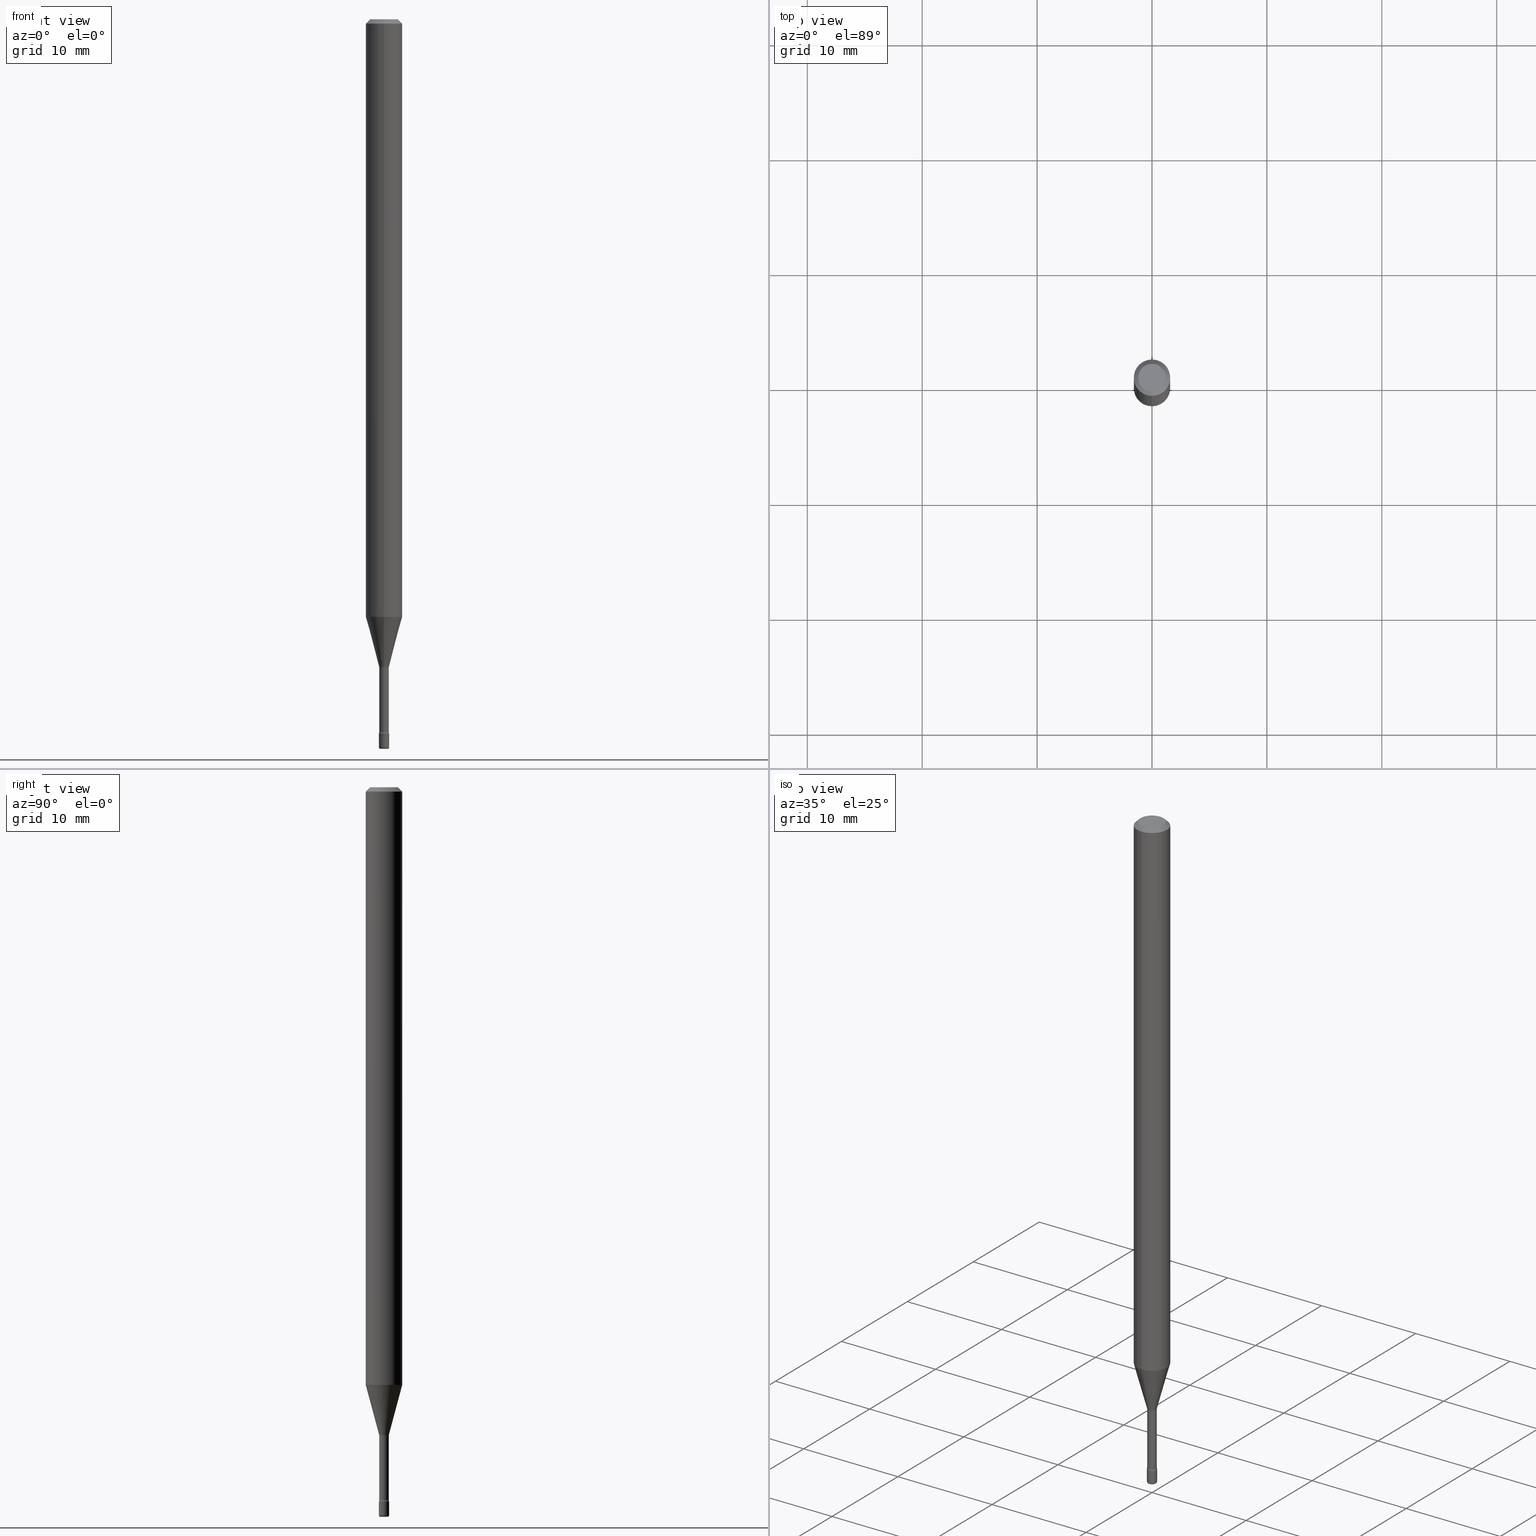
[diagram: canonical four-view strip — front | top / right | iso, engineering-drawing reading convention]
A machine part, canonical four-view strip (front | top / right | iso — engineering-drawing reading convention). The complete STEP part file that produces these views, byte-faithful:
ISO-10303-21;
HEADER;
FILE_DESCRIPTION (( 'STEP AP203' ),
    '1' );
FILE_NAME ('08795.STEP',
    '2024-03-06T20:02:45',
    ( '' ),
    ( '' ),
    'SwSTEP 2.0',
    'SolidWorks 2023',
    '' );
FILE_SCHEMA (( 'CONFIG_CONTROL_DESIGN' ));
ENDSEC;

DATA;
#1 = EDGE_CURVE ( 'NONE', #440, #310, #3, .T. ) ;
#2 = LOCAL_TIME ( 15, 2, 45.00000000000000000, #309 ) ;
#3 = CIRCLE ( 'NONE', #296, 0.01696111260566397771 ) ;
#4 = CARTESIAN_POINT ( 'NONE',  ( -0.01750000000000000167, -8.503978279858106111E-15, -2.447500000000000231 ) ) ;
#5 = VECTOR ( 'NONE', #48, 39.37007874015748143 ) ;
#6 = CARTESIAN_POINT ( 'NONE',  ( -0.01250000000000000069, -8.622428098443636122E-15, -2.495000000000000107 ) ) ;
#7 = EDGE_CURVE ( 'NONE', #92, #156, #213, .T. ) ;
#8 = DIRECTION ( 'NONE',  ( 6.982962677686265922E-15, 1.000000000000000000, -3.491518086038982995E-15 ) ) ;
#9 = EDGE_LOOP ( 'NONE', ( #274, #104, #95, #185 ) ) ;
#10 = CC_DESIGN_PERSON_AND_ORGANIZATION_ASSIGNMENT ( #275, #149, ( #115 ) ) ;
#11 = EDGE_LOOP ( 'NONE', ( #301, #538, #297, #148 ) ) ;
#12 = VECTOR ( 'NONE', #519, 39.37007874015748143 ) ;
#13 = CC_DESIGN_APPROVAL ( #111, ( #126 ) ) ;
#14 = ORIENTED_EDGE ( 'NONE', *, *, #288, .T. ) ;
#15 = DATE_AND_TIME ( #141, #430 ) ;
#16 = VERTEX_POINT ( 'NONE', #205 ) ;
#17 = CC_DESIGN_DATE_AND_TIME_ASSIGNMENT ( #15, #540, ( #122 ) ) ;
#18 = VERTEX_POINT ( 'NONE', #208 ) ;
#19 = CARTESIAN_POINT ( 'NONE',  ( 5.985284903138122000E-29, -8.545400576818598390E-15, -2.447500000000000231 ) ) ;
#20 = CARTESIAN_POINT ( 'NONE',  ( 3.668164718633155352E-31, -5.237277129058484255E-17, -0.01500000000000002720 ) ) ;
#21 = ORIENTED_EDGE ( 'NONE', *, *, #505, .F. ) ;
#22 = TOROIDAL_SURFACE ( 'NONE', #273, 0.03145000000000001267, 0.01499999999999995608 ) ;
#23 = AXIS2_PLACEMENT_3D ( 'NONE', #19, #483, #352 ) ;
#24 = DIRECTION ( 'NONE',  ( -2.445443145755432371E-29, 3.491518086038982995E-15, 1.000000000000000000 ) ) ;
#25 = EDGE_CURVE ( 'NONE', #252, #533, #280, .T. ) ;
#26 = ORIENTED_EDGE ( 'NONE', *, *, #25, .F. ) ;
#27 = DIRECTION ( 'NONE',  ( -2.445443145755432371E-29, 3.491518086038982995E-15, 1.000000000000000000 ) ) ;
#28 = CARTESIAN_POINT ( 'NONE',  ( 3.316907271900976589E-16, 0.04750000000000000749, 5.964586950610275085E-17 ) ) ;
#29 = EDGE_LOOP ( 'NONE', ( #351, #287 ) ) ;
#30 = DIRECTION ( 'NONE',  ( 4.937700262164546464E-15, 0.7071067811865449082, -0.7071067811865501263 ) ) ;
#31 = ORIENTED_EDGE ( 'NONE', *, *, #326, .F. ) ;
#32 = EDGE_CURVE ( 'NONE', #440, #252, #329, .T. ) ;
#33 = ADVANCED_FACE ( 'NONE', ( #555 ), #121, .T. ) ;
#34 = CIRCLE ( 'NONE', #138, 0.01750000000000000167 ) ;
#35 = DIRECTION ( 'NONE',  ( -2.445443145755432371E-29, 3.491518086038982995E-15, 1.000000000000000000 ) ) ;
#36 = CIRCLE ( 'NONE', #336, 0.06250000000000000000 ) ;
#37 = DIRECTION ( 'NONE',  ( -1.000000000000000000, 6.982962677686265922E-15, -4.883557194083112340E-29 ) ) ;
#38 = CARTESIAN_POINT ( 'NONE',  ( 6.622853108552095614E-46, -9.459386047552514067E-32, -2.708744170533719045E-17 ) ) ;
#39 = CC_DESIGN_PERSON_AND_ORGANIZATION_ASSIGNMENT ( #261, #221, ( #122 ) ) ;
#40 = ORIENTED_EDGE ( 'NONE', *, *, #288, .F. ) ;
#41 = DIRECTION ( 'NONE',  ( -6.982962677686266711E-15, -1.000000000000000000, 0.000000000000000000 ) ) ;
#42 = CARTESIAN_POINT ( 'NONE',  ( -1.222018468594496105E-16, -0.01750000000000852263, -2.447500000000000231 ) ) ;
#43 = AXIS2_PLACEMENT_3D ( 'NONE', #358, #37, #502 ) ;
#44 = LINE ( 'NONE', #259, #12 ) ;
#45 = AXIS2_PLACEMENT_3D ( 'NONE', #365, #412, #463 ) ;
#46 = CC_DESIGN_PERSON_AND_ORGANIZATION_ASSIGNMENT ( #100, #530, ( #271 ) ) ;
#47 = ADVANCED_FACE ( 'NONE', ( #323 ), #166, .T. ) ;
#48 = DIRECTION ( 'NONE',  ( -2.445443145755432091E-29, 3.491518086038982995E-15, 1.000000000000000000 ) ) ;
#49 = CARTESIAN_POINT ( 'NONE',  ( 2.234656903966058327E-16, 0.03144999999999224805, -2.221974787463810941 ) ) ;
#50 =( NAMED_UNIT ( * ) PLANE_ANGLE_UNIT ( ) SI_UNIT ( $, .RADIAN. ) );
#51 = ADVANCED_FACE ( 'NONE', ( #411 ), #22, .F. ) ;
#52 = DIRECTION ( 'NONE',  ( -2.445468806185136597E-29, 3.491481338843145583E-15, 1.000000000000000000 ) ) ;
#53 = APPROVAL_PERSON_ORGANIZATION ( #311, #111, #56 ) ;
#54 = TOROIDAL_SURFACE ( 'NONE', #401, 0.03145000000000001267, 0.01499999999999995608 ) ;
#55 = EDGE_LOOP ( 'NONE', ( #179, #424, #248, #59 ) ) ;
#56 = APPROVAL_ROLE ( '' ) ;
#57 = ORIENTED_EDGE ( 'NONE', *, *, #417, .T. ) ;
#58 = CALENDAR_DATE ( 2024, 6, 3 ) ;
#59 = ORIENTED_EDGE ( 'NONE', *, *, #385, .F. ) ;
#60 = APPROVAL_DATE_TIME ( #306, #379 ) ;
#61 = ORIENTED_EDGE ( 'NONE', *, *, #107, .F. ) ;
#62 = EDGE_LOOP ( 'NONE', ( #509, #266, #442, #269 ) ) ;
#63 = DIRECTION ( 'NONE',  ( -2.445443145755432371E-29, 3.491518086038982995E-15, 1.000000000000000000 ) ) ;
#64 = DIMENSIONAL_EXPONENTS ( 1.000000000000000000, 0.000000000000000000, 0.000000000000000000, 0.000000000000000000, 0.000000000000000000, 0.000000000000000000, 0.000000000000000000 ) ;
#65 = EDGE_CURVE ( 'NONE', #135, #144, #466, .T. ) ;
#66 = DIRECTION ( 'NONE',  ( -6.982962677686265133E-15, -1.000000000000000000, 0.000000000000000000 ) ) ;
#67 = CARTESIAN_POINT ( 'NONE',  ( 0.01250000000000000069, -8.798532973884726663E-15, -2.495000000000000107 ) ) ;
#68 = VECTOR ( 'NONE', #320, 39.37007874015748143 ) ;
#69 = AXIS2_PLACEMENT_3D ( 'NONE', #415, #162, #117 ) ;
#70 = PLANE ( 'NONE',  #482 ) ;
#71 = DIRECTION ( 'NONE',  ( 1.000000000000000000, -6.982962677686265922E-15, 4.876176775795936353E-29 ) ) ;
#72 = ORIENTED_EDGE ( 'NONE', *, *, #222, .T. ) ;
#73 = DIRECTION ( 'NONE',  ( -6.982962677686265133E-15, -1.000000000000000000, 3.491518086038982995E-15 ) ) ;
#74 = DIRECTION ( 'NONE',  ( 1.000000000000000000, -6.982962677686248567E-15, 0.000000000000000000 ) ) ;
#75 = CARTESIAN_POINT ( 'NONE',  ( -1.184388162973313820E-16, -0.01696111260567172499, -2.218092501787273019 ) ) ;
#76 = EDGE_CURVE ( 'NONE', #228, #487, #151, .T. ) ;
#77 = AXIS2_PLACEMENT_3D ( 'NONE', #522, #476, #293 ) ;
#78 = DIRECTION ( 'NONE',  ( -6.982962677686265922E-15, -1.000000000000000000, 3.491518086038982206E-15 ) ) ;
#79 = EDGE_LOOP ( 'NONE', ( #462, #344, #72, #40 ) ) ;
#80 = CARTESIAN_POINT ( 'NONE',  ( -4.287811248607203282E-16, -0.06250000000000005551, -0.01499999999999981036 ) ) ;
#81 = EDGE_LOOP ( 'NONE', ( #183, #386, #234, #391 ) ) ;
#82 = EDGE_LOOP ( 'NONE', ( #127, #464, #408, #524 ) ) ;
#83 = CARTESIAN_POINT ( 'NONE',  ( 4.440892098501126102E-16, 0.06249999999999283906, -2.048139060311453985 ) ) ;
#84 = EDGE_CURVE ( 'NONE', #484, #152, #239, .T. ) ;
#85 = ORIENTED_EDGE ( 'NONE', *, *, #446, .F. ) ;
#86 = AXIS2_PLACEMENT_3D ( 'NONE', #194, #318, #158 ) ;
#87 = EDGE_LOOP ( 'NONE', ( #552, #14 ) ) ;
#88 = CARTESIAN_POINT ( 'NONE',  ( -1.148697360479392982E-16, -0.01645000000000003057, 5.355088714065874152E-16 ) ) ;
#89 = EDGE_CURVE ( 'NONE', #290, #16, #454, .T. ) ;
#90 = LENGTH_MEASURE_WITH_UNIT ( LENGTH_MEASURE( 0.02539999999999999897 ), #333 );
#91 = DIRECTION ( 'NONE',  ( 6.982962677686265922E-15, 1.000000000000000000, -3.483106191921935554E-15 ) ) ;
#92 = VERTEX_POINT ( 'NONE', #523 ) ;
#93 = SECURITY_CLASSIFICATION_LEVEL ( 'unclassified' ) ;
#94 = CIRCLE ( 'NONE', #403, 0.04750000000000000749 ) ;
#95 = ORIENTED_EDGE ( 'NONE', *, *, #513, .T. ) ;
#96 = COORDINATED_UNIVERSAL_TIME_OFFSET ( 5, 0, .BEHIND. ) ;
#97 = ADVANCED_FACE ( 'NONE', ( #420 ), #335, .T. ) ;
#98 = CARTESIAN_POINT ( 'NONE',  ( 4.440892098500625669E-16, 0.06250000000000000000, 2.598535185138096507E-16 ) ) ;
#99 = VERTEX_POINT ( 'NONE', #217 ) ;
#100 = PERSON_AND_ORGANIZATION ( #171, #525 ) ;
#101 = ORIENTED_EDGE ( 'NONE', *, *, #65, .F. ) ;
#102 = CALENDAR_DATE ( 2024, 6, 3 ) ;
#103 = CIRCLE ( 'NONE', #413, 0.01644999999999999934 ) ;
#104 = ORIENTED_EDGE ( 'NONE', *, *, #374, .T. ) ;
#105 = DATE_AND_TIME ( #133, #362 ) ;
#106 = EDGE_LOOP ( 'NONE', ( #348, #285, #567, #140 ) ) ;
#107 = EDGE_CURVE ( 'NONE', #310, #152, #114, .T. ) ;
#108 = FACE_OUTER_BOUND ( 'NONE', #9, .T. ) ;
#109 = DIRECTION ( 'NONE',  ( 1.000000000000000000, -6.982962677686216223E-15, 0.000000000000000000 ) ) ;
#110 = CARTESIAN_POINT ( 'NONE',  ( 5.985284903138122000E-29, -8.545400576818598390E-15, -2.447500000000000231 ) ) ;
#111 = APPROVAL ( #441, 'UNSPECIFIED' ) ;
#112 = FACE_OUTER_BOUND ( 'NONE', #79, .T. ) ;
#113 = CARTESIAN_POINT ( 'NONE',  ( 5.008607626592616382E-29, -7.151114571800326842E-15, -2.048139060311453541 ) ) ;
#114 = CIRCLE ( 'NONE', #556, 0.01500000000000002720 ) ;
#115 = PRODUCT_DEFINITION_FORMATION_WITH_SPECIFIED_SOURCE ( 'ANY', '', #271, .NOT_KNOWN. ) ;
#116 = AXIS2_PLACEMENT_3D ( 'NONE', #557, #279, #284 ) ;
#117 = DIRECTION ( 'NONE',  ( 1.000000000000000000, -6.982962677686248567E-15, 0.000000000000000000 ) ) ;
#118 = ORIENTED_EDGE ( 'NONE', *, *, #241, .T. ) ;
#119 = EDGE_LOOP ( 'NONE', ( #305, #542, #26, #177 ) ) ;
#120 = CARTESIAN_POINT ( 'NONE',  ( 5.433770030872598640E-29, -7.757983505809861225E-15, -2.221974787463810941 ) ) ;
#121 = CYLINDRICAL_SURFACE ( 'NONE', #86, 0.01645000000000003057 ) ;
#122 = SECURITY_CLASSIFICATION ( '', '', #93 ) ;
#123 = VECTOR ( 'NONE', #146, 39.37007874015748143 ) ;
#124 = EDGE_CURVE ( 'NONE', #283, #228, #393, .T. ) ;
#125 = DIRECTION ( 'NONE',  ( -2.445443145755432371E-29, 3.491518086038982995E-15, 1.000000000000000000 ) ) ;
#126 = PRODUCT_DEFINITION ( 'UNKNOWN', '', #115, #571 ) ;
#127 = ORIENTED_EDGE ( 'NONE', *, *, #25, .T. ) ;
#128 = VECTOR ( 'NONE', #500, 39.37007874015748143 ) ;
#129 = AXIS2_PLACEMENT_3D ( 'NONE', #195, #357, #157 ) ;
#130 = CARTESIAN_POINT ( 'NONE',  ( 6.113672015462842613E-29, -8.728703347107864943E-15, -2.500000000000000000 ) ) ;
#131 = APPLICATION_PROTOCOL_DEFINITION ( 'international standard', 'config_control_design', 1994, #147 ) ;
#132 = DIRECTION ( 'NONE',  ( 7.105427357601001859E-15, 1.000000000000000000, -3.491481338843145583E-15 ) ) ;
#133 = CALENDAR_DATE ( 2024, 6, 3 ) ;
#134 = DIRECTION ( 'NONE',  ( -2.445468806185136597E-29, 3.491481338843145583E-15, 1.000000000000000000 ) ) ;
#135 = VERTEX_POINT ( 'NONE', #426 ) ;
#136 = APPROVAL_ROLE ( '' ) ;
#137 = DIRECTION ( 'NONE',  ( -2.445443145755432371E-29, 3.491518086038982995E-15, 1.000000000000000000 ) ) ;
#138 = AXIS2_PLACEMENT_3D ( 'NONE', #569, #52, #371 ) ;
#139 = CARTESIAN_POINT ( 'NONE',  ( 0.01750000000000000167, -1.222018468595096625E-16, 8.533309357642889039E-31 ) ) ;
#140 = ORIENTED_EDGE ( 'NONE', *, *, #7, .F. ) ;
#141 = CALENDAR_DATE ( 2024, 6, 3 ) ;
#142 = ADVANCED_FACE ( 'NONE', ( #381 ), #515, .T. ) ;
#143 = CARTESIAN_POINT ( 'NONE',  ( 1.205159535236902748E-16, 0.01696111260565623391, -2.218092501787273019 ) ) ;
#144 = VERTEX_POINT ( 'NONE', #4 ) ;
#145 = APPLICATION_PROTOCOL_DEFINITION ( 'international standard', 'config_control_design', 1994, #437 ) ;
#146 = DIRECTION ( 'NONE',  ( -2.445468806185136877E-29, 3.491481338843145188E-15, 1.000000000000000000 ) ) ;
#147 = APPLICATION_CONTEXT ( 'configuration controlled 3d designs of mechanical parts and assemblies' ) ;
#148 = ORIENTED_EDGE ( 'NONE', *, *, #207, .F. ) ;
#149 = PERSON_AND_ORGANIZATION_ROLE ( 'design_supplier' ) ;
#150 = CARTESIAN_POINT ( 'NONE',  ( 5.433713014044760359E-29, -7.758065157152522495E-15, -2.221974787463810941 ) ) ;
#151 = CIRCLE ( 'NONE', #547, 0.005000000000000042605 ) ;
#152 = VERTEX_POINT ( 'NONE', #570 ) ;
#153 = DIRECTION ( 'NONE',  ( -2.445443145755432371E-29, 3.491518086038982995E-15, 1.000000000000000000 ) ) ;
#154 = ORIENTED_EDGE ( 'NONE', *, *, #207, .T. ) ;
#155 = CARTESIAN_POINT ( 'NONE',  ( 5.971739410640861037E-29, -8.526240404956683849E-15, -2.441986607215153704 ) ) ;
#156 = VERTEX_POINT ( 'NONE', #42 ) ;
#157 = DIRECTION ( 'NONE',  ( 1.000000000000000000, -6.982962677686265922E-15, 4.876176775795936353E-29 ) ) ;
#158 = DIRECTION ( 'NONE',  ( -6.982962677686266711E-15, -1.000000000000000000, 3.491518086038983784E-15 ) ) ;
#159 = AXIS2_PLACEMENT_3D ( 'NONE', #113, #251, #561 ) ;
#160 = CARTESIAN_POINT ( 'NONE',  ( 1.206146293953368650E-16, 0.01644999999999153389, -2.441986607215153704 ) ) ;
#161 = DIRECTION ( 'NONE',  ( -6.982962677686266711E-15, -1.000000000000000000, 3.491481338843145583E-15 ) ) ;
#162 = DIRECTION ( 'NONE',  ( -2.445468806185136597E-29, 3.491481338843145583E-15, 1.000000000000000000 ) ) ;
#163 = ORIENTED_EDGE ( 'NONE', *, *, #390, .F. ) ;
#164 = MECHANICAL_CONTEXT ( 'NONE', #147, 'mechanical' ) ;
#165 = DIRECTION ( 'NONE',  ( -2.445468806185136597E-29, 3.491481338843145583E-15, 1.000000000000000000 ) ) ;
#166 = CONICAL_SURFACE ( 'NONE', #536, 0.06250000000000000000, 0.7853981633974480570 ) ;
#167 = CIRCLE ( 'NONE', #421, 0.04750000000000000749 ) ;
#168 = DIRECTION ( 'NONE',  ( -4.851104656540962697E-15, -0.7071067811865497932, -0.7071067811865452413 ) ) ;
#169 =( NAMED_UNIT ( * ) SI_UNIT ( $, .STERADIAN. ) SOLID_ANGLE_UNIT ( ) );
#170 = CARTESIAN_POINT ( 'NONE',  ( 2.823025816869015904E-16, 0.01696111260565623738, -2.218092501787273019 ) ) ;
#171 = PERSON ( 'UNSPECIFIED', 'UNSPECIFIED', 'UNSPECIFIED', ('UNSPECIFIED'), ('UNSPECIFIED'), ('UNSPECIFIED') ) ;
#172 = ADVANCED_FACE ( 'NONE', ( #529 ), #353, .T. ) ;
#173 = DIRECTION ( 'NONE',  ( -2.445443145755432371E-29, 3.491518086038982995E-15, 1.000000000000000000 ) ) ;
#174 = AXIS2_PLACEMENT_3D ( 'NONE', #20, #153, #549 ) ;
#175 = AXIS2_PLACEMENT_3D ( 'NONE', #465, #286, #504 ) ;
#176 = DIRECTION ( 'NONE',  ( -2.445443145755432371E-29, 3.491518086038982995E-15, 1.000000000000000000 ) ) ;
#177 = ORIENTED_EDGE ( 'NONE', *, *, #32, .F. ) ;
#178 = DATE_TIME_ROLE ( 'creation_date' ) ;
#179 = ORIENTED_EDGE ( 'NONE', *, *, #294, .F. ) ;
#180 = CARTESIAN_POINT ( 'NONE',  ( -0.01750000000000000167, 1.243449787580175444E-16, -8.608136407946085539E-31 ) ) ;
#181 = CIRCLE ( 'NONE', #503, 0.005000000000000042605 ) ;
#182 = CIRCLE ( 'NONE', #69, 0.01750000000000000167 ) ;
#183 = ORIENTED_EDGE ( 'NONE', *, *, #489, .F. ) ;
#184 = COORDINATED_UNIVERSAL_TIME_OFFSET ( 5, 0, .BEHIND. ) ;
#185 = ORIENTED_EDGE ( 'NONE', *, *, #532, .F. ) ;
#186 = DIRECTION ( 'NONE',  ( -6.982962677686266711E-15, -1.000000000000000000, 0.000000000000000000 ) ) ;
#187 = ORIENTED_EDGE ( 'NONE', *, *, #513, .F. ) ;
#188 = CARTESIAN_POINT ( 'NONE',  ( 6.113672015462842613E-29, -8.728703347107864943E-15, -2.500000000000000000 ) ) ;
#189 = CIRCLE ( 'NONE', #174, 0.06250000000000000000 ) ;
#190 = AXIS2_PLACEMENT_3D ( 'NONE', #514, #292, #518 ) ;
#191 = CIRCLE ( 'NONE', #429, 0.01500000000000002720 ) ;
#192 = ORIENTED_EDGE ( 'NONE', *, *, #245, .F. ) ;
#193 = DIRECTION ( 'NONE',  ( -2.445443145755432371E-29, 3.491518086038982995E-15, 1.000000000000000000 ) ) ;
#194 = CARTESIAN_POINT ( 'NONE',  ( -1.169113584055446105E-44, 1.669184350826100908E-30, 4.780733988912460139E-16 ) ) ;
#195 = CARTESIAN_POINT ( 'NONE',  ( 0.000000000000000000, 0.000000000000000000, 0.000000000000000000 ) ) ;
#196 = DIRECTION ( 'NONE',  ( 2.445443145755432091E-29, -3.491518086038982995E-15, -1.000000000000000000 ) ) ;
#197 = DIRECTION ( 'NONE',  ( -6.982962677686266711E-15, -1.000000000000000000, 0.000000000000000000 ) ) ;
#198 = ADVANCED_FACE ( 'NONE', ( #439 ), #54, .F. ) ;
#199 = DIRECTION ( 'NONE',  ( -6.982962677686265133E-15, -1.000000000000000000, 3.491518086038982600E-15 ) ) ;
#200 = CARTESIAN_POINT ( 'NONE',  ( -0.01750000000000002248, -8.586900961655630292E-15, -2.495000000000000107 ) ) ;
#201 = LOCAL_TIME ( 15, 2, 45.00000000000000000, #96 ) ;
#202 = CARTESIAN_POINT ( 'NONE',  ( 5.971802073066533793E-29, -8.526150668796594058E-15, -2.441986607215153704 ) ) ;
#203 = AXIS2_PLACEMENT_3D ( 'NONE', #340, #451, #66 ) ;
#204 = DIRECTION ( 'NONE',  ( -2.445443145755432091E-29, 3.491518086038982995E-15, 1.000000000000000000 ) ) ;
#205 = CARTESIAN_POINT ( 'NONE',  ( 4.440892098501130047E-16, 0.06249999999999995143, -0.01500000000000024578 ) ) ;
#206 = DIRECTION ( 'NONE',  ( -6.982962677686266711E-15, -1.000000000000000000, 3.491518086038983784E-15 ) ) ;
#207 = EDGE_CURVE ( 'NONE', #16, #290, #189, .T. ) ;
#208 = CARTESIAN_POINT ( 'NONE',  ( -3.773273898774340269E-16, -0.04750000000000000749, 1.387596673815145182E-16 ) ) ;
#209 = CARTESIAN_POINT ( 'NONE',  ( -1.148697360478847435E-16, -0.01645000000000775703, -2.221974787463810941 ) ) ;
#210 = CC_DESIGN_PERSON_AND_ORGANIZATION_ASSIGNMENT ( #392, #270, ( #115 ) ) ;
#211 = MANIFOLD_SOLID_BREP ( 'Body-Move/Copy2[1]', #314 ) ;
#212 = ADVANCED_BREP_SHAPE_REPRESENTATION ( '08795', ( #211, #377, #190 ), #394 ) ;
#213 = CIRCLE ( 'NONE', #43, 0.01499999999999995608 ) ;
#214 = LOCAL_TIME ( 15, 2, 45.00000000000000000, #432 ) ;
#215 = AXIS2_PLACEMENT_3D ( 'NONE', #277, #63, #206 ) ;
#216 = FACE_OUTER_BOUND ( 'NONE', #119, .T. ) ;
#217 = CARTESIAN_POINT ( 'NONE',  ( 1.243449787580772020E-16, 0.01749999999999143213, -2.447500000000000231 ) ) ;
#218 = AXIS2_PLACEMENT_3D ( 'NONE', #370, #425, #427 ) ;
#219 = AXIS2_PLACEMENT_3D ( 'NONE', #338, #369, #91 ) ;
#220 = PLANE ( 'NONE',  #564 ) ;
#221 = PERSON_AND_ORGANIZATION_ROLE ( 'classification_officer' ) ;
#222 = EDGE_CURVE ( 'NONE', #487, #135, #497, .T. ) ;
#223 = DIRECTION ( 'NONE',  ( -2.445443145755432371E-29, 3.491518086038982995E-15, 1.000000000000000000 ) ) ;
#224 = EDGE_LOOP ( 'NONE', ( #21, #435, #395, #154 ) ) ;
#225 = DATE_AND_TIME ( #58, #201 ) ;
#226 = DIRECTION ( 'NONE',  ( 1.000000000000000000, -7.105427357601001070E-15, 4.926315958565440211E-29 ) ) ;
#227 = DIRECTION ( 'NONE',  ( -6.982962677686266711E-15, -1.000000000000000000, 3.491518086038982600E-15 ) ) ;
#228 = VERTEX_POINT ( 'NONE', #317 ) ;
#229 = PERSON_AND_ORGANIZATION ( #171, #525 ) ;
#230 = VECTOR ( 'NONE', #511, 39.37007874015748854 ) ;
#231 = ORIENTED_EDGE ( 'NONE', *, *, #390, .T. ) ;
#232 = ORIENTED_EDGE ( 'NONE', *, *, #325, .T. ) ;
#233 = PERSON_AND_ORGANIZATION ( #171, #525 ) ;
#234 = ORIENTED_EDGE ( 'NONE', *, *, #532, .T. ) ;
#235 = FACE_OUTER_BOUND ( 'NONE', #55, .T. ) ;
#236 = CARTESIAN_POINT ( 'NONE',  ( -4.364351673553416753E-16, -0.06250000000000717482, -2.048139060311453541 ) ) ;
#237 = AXIS2_PLACEMENT_3D ( 'NONE', #130, #563, #257 ) ;
#238 = VECTOR ( 'NONE', #434, 39.37007874015748143 ) ;
#239 = LINE ( 'NONE', #356, #68 ) ;
#240 = FACE_OUTER_BOUND ( 'NONE', #458, .T. ) ;
#241 = EDGE_CURVE ( 'NONE', #228, #283, #445, .T. ) ;
#242 = ORIENTED_EDGE ( 'NONE', *, *, #334, .T. ) ;
#243 = FACE_OUTER_BOUND ( 'NONE', #475, .T. ) ;
#244 = CARTESIAN_POINT ( 'NONE',  ( -0.01250000000000000069, -8.613393233396740725E-15, -2.500000000000000000 ) ) ;
#245 = EDGE_CURVE ( 'NONE', #92, #484, #492, .T. ) ;
#246 = DIRECTION ( 'NONE',  ( 2.445443145755432371E-29, -3.491518086038982995E-15, -1.000000000000000000 ) ) ;
#247 = CYLINDRICAL_SURFACE ( 'NONE', #539, 0.06250000000000000000 ) ;
#248 = ORIENTED_EDGE ( 'NONE', *, *, #76, .T. ) ;
#249 = CIRCLE ( 'NONE', #431, 0.01499999999999995608 ) ;
#250 = DIRECTION ( 'NONE',  ( -2.445443145755432371E-29, 3.491518086038982995E-15, 1.000000000000000000 ) ) ;
#251 = DIRECTION ( 'NONE',  ( -2.445443145755432371E-29, 3.491518086038982995E-15, 1.000000000000000000 ) ) ;
#252 = VERTEX_POINT ( 'NONE', #236 ) ;
#253 = AXIS2_PLACEMENT_3D ( 'NONE', #520, #176, #470 ) ;
#254 = DIRECTION ( 'NONE',  ( -6.982962677686265922E-15, -1.000000000000000000, 0.000000000000000000 ) ) ;
#255 = ADVANCED_FACE ( 'NONE', ( #112 ), #531, .T. ) ;
#256 = DIRECTION ( 'NONE',  ( -1.000000000000000000, 7.105427357601060234E-15, 0.000000000000000000 ) ) ;
#257 = DIRECTION ( 'NONE',  ( 1.000000000000000000, -6.982962677686216223E-15, 0.000000000000000000 ) ) ;
#258 = CARTESIAN_POINT ( 'NONE',  ( 5.008607626592616382E-29, -7.151114571800326842E-15, -2.048139060311453541 ) ) ;
#259 = CARTESIAN_POINT ( 'NONE',  ( -4.364351673553916201E-16, -0.06250000000000000000, 6.962932792686824758E-16 ) ) ;
#260 = CARTESIAN_POINT ( 'NONE',  ( 5.424219105147207010E-29, -7.744510086497720348E-15, -2.218092501787273019 ) ) ;
#261 = PERSON_AND_ORGANIZATION ( #171, #525 ) ;
#262 = LINE ( 'NONE', #98, #238 ) ;
#263 = VERTEX_POINT ( 'NONE', #460 ) ;
#264 = APPROVAL_DATE_TIME ( #105, #396 ) ;
#265 = DIRECTION ( 'NONE',  ( -6.982962677686265922E-15, -1.000000000000000000, 0.000000000000000000 ) ) ;
#266 = ORIENTED_EDGE ( 'NONE', *, *, #489, .T. ) ;
#267 = ADVANCED_FACE ( 'NONE', ( #407 ), #220, .F. ) ;
#268 = AXIS2_PLACEMENT_3D ( 'NONE', #120, #24, #508 ) ;
#269 = ORIENTED_EDGE ( 'NONE', *, *, #512, .F. ) ;
#270 = PERSON_AND_ORGANIZATION_ROLE ( 'creator' ) ;
#271 = PRODUCT ( '08795', '08795', '', ( #164 ) ) ;
#272 = CC_DESIGN_APPROVAL ( #379, ( #122 ) ) ;
#273 = AXIS2_PLACEMENT_3D ( 'NONE', #202, #364, #278 ) ;
#274 = ORIENTED_EDGE ( 'NONE', *, *, #84, .F. ) ;
#275 = PERSON_AND_ORGANIZATION ( #171, #525 ) ;
#276 = VERTEX_POINT ( 'NONE', #200 ) ;
#277 = CARTESIAN_POINT ( 'NONE',  ( -1.169113584055446105E-44, 1.669184350826100908E-30, 4.780733988912460139E-16 ) ) ;
#278 = DIRECTION ( 'NONE',  ( -6.982962677686266711E-15, -1.000000000000000000, 3.491518086038982600E-15 ) ) ;
#279 = DIRECTION ( 'NONE',  ( 2.438088387897960049E-29, -3.491481338843145188E-15, -1.000000000000000000 ) ) ;
#280 = CIRCLE ( 'NONE', #159, 0.06250000000000000000 ) ;
#281 = CIRCLE ( 'NONE', #443, 0.01750000000000000167 ) ;
#282 = TOROIDAL_SURFACE ( 'NONE', #45, 0.01250000000000000069, 0.005000000000000041737 ) ;
#283 = VERTEX_POINT ( 'NONE', #244 ) ;
#284 = DIRECTION ( 'NONE',  ( -1.000000000000000000, 6.982962677686265922E-15, -4.876176775795935793E-29 ) ) ;
#285 = ORIENTED_EDGE ( 'NONE', *, *, #332, .T. ) ;
#286 = DIRECTION ( 'NONE',  ( -2.445443145755432371E-29, 3.491518086038982995E-15, 1.000000000000000000 ) ) ;
#287 = ORIENTED_EDGE ( 'NONE', *, *, #124, .F. ) ;
#288 = EDGE_CURVE ( 'NONE', #144, #135, #302, .T. ) ;
#289 = CARTESIAN_POINT ( 'NONE',  ( 0.01750000000000002248, -8.833447787273158312E-15, -2.495000000000000107 ) ) ;
#290 = VERTEX_POINT ( 'NONE', #493 ) ;
#291 = CC_DESIGN_DATE_AND_TIME_ASSIGNMENT ( #345, #178, ( #126 ) ) ;
#292 = DIRECTION ( 'NONE',  ( 0.000000000000000000, 0.000000000000000000, 1.000000000000000000 ) ) ;
#293 = DIRECTION ( 'NONE',  ( -6.982962677686266711E-15, -1.000000000000000000, 0.000000000000000000 ) ) ;
#294 = EDGE_CURVE ( 'NONE', #283, #276, #181, .T. ) ;
#295 = ORIENTED_EDGE ( 'NONE', *, *, #332, .F. ) ;
#296 = AXIS2_PLACEMENT_3D ( 'NONE', #405, #414, #197 ) ;
#297 = ORIENTED_EDGE ( 'NONE', *, *, #298, .T. ) ;
#298 = EDGE_CURVE ( 'NONE', #252, #290, #44, .T. ) ;
#299 = PERSON_AND_ORGANIZATION_ROLE ( 'creator' ) ;
#300 = UNCERTAINTY_MEASURE_WITH_UNIT (LENGTH_MEASURE( 1.000000000000000082E-05 ), #568, 'distance_accuracy_value', 'NONE');
#301 = ORIENTED_EDGE ( 'NONE', *, *, #359, .F. ) ;
#302 = CIRCLE ( 'NONE', #526, 0.01750000000000000167 ) ;
#303 = AXIS2_PLACEMENT_3D ( 'NONE', #554, #35, #199 ) ;
#304 = PLANE ( 'NONE',  #23 ) ;
#305 = ORIENTED_EDGE ( 'NONE', *, *, #1, .T. ) ;
#306 = DATE_AND_TIME ( #444, #214 ) ;
#307 = EDGE_CURVE ( 'NONE', #487, #276, #34, .T. ) ;
#308 = ORIENTED_EDGE ( 'NONE', *, *, #366, .F. ) ;
#309 = COORDINATED_UNIVERSAL_TIME_OFFSET ( 5, 0, .BEHIND. ) ;
#310 = VERTEX_POINT ( 'NONE', #170 ) ;
#311 = PERSON_AND_ORGANIZATION ( #171, #525 ) ;
#312 = DIRECTION ( 'NONE',  ( -1.000000000000000000, 6.982962677686265922E-15, -4.883557194083112340E-29 ) ) ;
#313 = APPROVAL_PERSON_ORGANIZATION ( #448, #379, #136 ) ;
#314 = CLOSED_SHELL ( 'NONE', ( #498, #142, #337, #468, #461, #255 ) ) ;
#315 = EDGE_LOOP ( 'NONE', ( #163, #342, #416, #85 ) ) ;
#316 = DIRECTION ( 'NONE',  ( -6.982962677686265922E-15, -1.000000000000000000, 3.491518086038982995E-15 ) ) ;
#317 = CARTESIAN_POINT ( 'NONE',  ( 0.01250000000000000069, -8.815990380578941699E-15, -2.500000000000000000 ) ) ;
#318 = DIRECTION ( 'NONE',  ( -2.445443145755432371E-29, 3.491518086038982995E-15, 1.000000000000000000 ) ) ;
#319 = FACE_OUTER_BOUND ( 'NONE', #550, .T. ) ;
#320 = DIRECTION ( 'NONE',  ( -2.445443145755432091E-29, 3.491518086038982995E-15, 1.000000000000000000 ) ) ;
#321 = LINE ( 'NONE', #80, #404 ) ;
#322 = CLOSED_SHELL ( 'NONE', ( #474, #33, #51, #97, #553, #543, #172, #382, #47, #267, #433, #198, #438, #397 ) ) ;
#323 = FACE_OUTER_BOUND ( 'NONE', #224, .T. ) ;
#324 = FACE_OUTER_BOUND ( 'NONE', #11, .T. ) ;
#325 = EDGE_CURVE ( 'NONE', #276, #144, #423, .T. ) ;
#326 = EDGE_CURVE ( 'NONE', #545, #152, #103, .T. ) ;
#327 = DIRECTION ( 'NONE',  ( 1.000000000000000000, -6.982962677686078962E-15, 0.000000000000000000 ) ) ;
#328 = PLANE ( 'NONE',  #116 ) ;
#329 = LINE ( 'NONE', #75, #230 ) ;
#330 = VECTOR ( 'NONE', #455, 39.37007874015748854 ) ;
#331 = DIRECTION ( 'NONE',  ( -6.982962677686265922E-15, -1.000000000000000000, 4.370956789862821150E-15 ) ) ;
#332 = EDGE_CURVE ( 'NONE', #484, #99, #249, .T. ) ;
#333 =( LENGTH_UNIT ( ) NAMED_UNIT ( * ) SI_UNIT ( $, .METRE. ) );
#334 = EDGE_CURVE ( 'NONE', #440, #545, #191, .T. ) ;
#335 = CONICAL_SURFACE ( 'NONE', #219, 0.06250000000000000000, 0.7853981633974480570 ) ;
#336 = AXIS2_PLACEMENT_3D ( 'NONE', #258, #173, #331 ) ;
#337 = ADVANCED_FACE ( 'NONE', ( #399 ), #304, .T. ) ;
#338 = CARTESIAN_POINT ( 'NONE',  ( 3.668164718633155352E-31, -5.237277129058484255E-17, -0.01500000000000002720 ) ) ;
#339 = COORDINATED_UNIVERSAL_TIME_OFFSET ( 5, 0, .BEHIND. ) ;
#340 = CARTESIAN_POINT ( 'NONE',  ( 5.971739410640861037E-29, -8.526240404956683849E-15, -2.441986607215153704 ) ) ;
#341 = CC_DESIGN_PERSON_AND_ORGANIZATION_ASSIGNMENT ( #229, #299, ( #126 ) ) ;
#342 = ORIENTED_EDGE ( 'NONE', *, *, #505, .T. ) ;
#343 = APPROVAL_STATUS ( 'not_yet_approved' ) ;
#344 = ORIENTED_EDGE ( 'NONE', *, *, #385, .T. ) ;
#345 = DATE_AND_TIME ( #102, #2 ) ;
#346 = CIRCLE ( 'NONE', #506, 0.01645000000000006180 ) ;
#347 = CARTESIAN_POINT ( 'NONE',  ( 2.234656903966113054E-16, 0.03144999999999149171, -2.441986607215153704 ) ) ;
#348 = ORIENTED_EDGE ( 'NONE', *, *, #374, .F. ) ;
#349 = ORIENTED_EDGE ( 'NONE', *, *, #84, .T. ) ;
#350 = DIRECTION ( 'NONE',  ( 7.105427357600999492E-15, 1.000000000000000000, 0.000000000000000000 ) ) ;
#351 = ORIENTED_EDGE ( 'NONE', *, *, #241, .F. ) ;
#352 = DIRECTION ( 'NONE',  ( 1.000000000000000000, -6.982962677686265922E-15, 4.876176775795935793E-29 ) ) ;
#353 = CONICAL_SURFACE ( 'NONE', #363, 0.01696111260566397771, 0.2617993877991500740 ) ;
#354 = ORIENTED_EDGE ( 'NONE', *, *, #1, .F. ) ;
#355 = PRODUCT_DEFINITION_SHAPE ( 'NONE', 'NONE',  #126 ) ;
#356 = CARTESIAN_POINT ( 'NONE',  ( 1.168842800325366731E-16, 0.01645000000000003057, 4.206379263759046620E-16 ) ) ;
#357 = DIRECTION ( 'NONE',  ( -2.445468806185136597E-29, 3.491481338843145583E-15, 1.000000000000000000 ) ) ;
#358 = CARTESIAN_POINT ( 'NONE',  ( -2.196141762131734293E-16, -0.03145000000000854057, -2.441986607215153704 ) ) ;
#359 = EDGE_CURVE ( 'NONE', #533, #16, #262, .T. ) ;
#360 = LINE ( 'NONE', #499, #457 ) ;
#361 = CARTESIAN_POINT ( 'NONE',  ( 5.985284903138122000E-29, -8.545400576818598390E-15, -2.447500000000000231 ) ) ;
#362 = LOCAL_TIME ( 15, 2, 45.00000000000000000, #339 ) ;
#363 = AXIS2_PLACEMENT_3D ( 'NONE', #260, #428, #535 ) ;
#364 = DIRECTION ( 'NONE',  ( -2.445443145755432371E-29, 3.491518086038982995E-15, 1.000000000000000000 ) ) ;
#365 = CARTESIAN_POINT ( 'NONE',  ( 6.101444671431915719E-29, -8.711245940413648329E-15, -2.495000000000000107 ) ) ;
#366 = EDGE_CURVE ( 'NONE', #99, #156, #375, .T. ) ;
#367 = EDGE_LOOP ( 'NONE', ( #118, #469, #495, #490 ) ) ;
#368 = CYLINDRICAL_SURFACE ( 'NONE', #215, 0.01645000000000003057 ) ;
#369 = DIRECTION ( 'NONE',  ( 2.445443145755432371E-29, -3.491518086038982995E-15, -1.000000000000000000 ) ) ;
#370 = CARTESIAN_POINT ( 'NONE',  ( -1.169113584055446105E-44, 1.669184350826100908E-30, 4.780733988912460139E-16 ) ) ;
#371 = DIRECTION ( 'NONE',  ( 1.000000000000000000, -6.982962677686248567E-15, 0.000000000000000000 ) ) ;
#372 = AXIS2_PLACEMENT_3D ( 'NONE', #456, #134, #71 ) ;
#373 = EDGE_CURVE ( 'NONE', #310, #533, #541, .T. ) ;
#374 = EDGE_CURVE ( 'NONE', #484, #92, #346, .T. ) ;
#375 = CIRCLE ( 'NONE', #565, 0.01750000000000000167 ) ;
#376 = LINE ( 'NONE', #88, #5 ) ;
#377 = MANIFOLD_SOLID_BREP ( 'Body-Move/Copy2[2]', #322 ) ;
#378 = DIRECTION ( 'NONE',  ( 7.105427357601001859E-15, 1.000000000000000000, 0.000000000000000000 ) ) ;
#379 = APPROVAL ( #534, 'UNSPECIFIED' ) ;
#380 = FACE_OUTER_BOUND ( 'NONE', #82, .T. ) ;
#381 = FACE_OUTER_BOUND ( 'NONE', #367, .T. ) ;
#382 = ADVANCED_FACE ( 'NONE', ( #324 ), #247, .T. ) ;
#383 = DIRECTION ( 'NONE',  ( 1.000000000000000000, -6.982962677686232001E-15, 4.883557194083101130E-29 ) ) ;
#384 = AXIS2_PLACEMENT_3D ( 'NONE', #418, #165, #383 ) ;
#385 = EDGE_CURVE ( 'NONE', #276, #487, #182, .T. ) ;
#386 = ORIENTED_EDGE ( 'NONE', *, *, #107, .T. ) ;
#387 = ORIENTED_EDGE ( 'NONE', *, *, #566, .T. ) ;
#388 = APPROVAL_DATE_TIME ( #225, #111 ) ;
#389 = CARTESIAN_POINT ( 'NONE',  ( 5.971802073066533793E-29, -8.526150668796594058E-15, -2.441986607215153704 ) ) ;
#390 = EDGE_CURVE ( 'NONE', #18, #263, #94, .T. ) ;
#391 = ORIENTED_EDGE ( 'NONE', *, *, #334, .F. ) ;
#392 = PERSON_AND_ORGANIZATION ( #171, #525 ) ;
#393 = CIRCLE ( 'NONE', #237, 0.01250000000000000069 ) ;
#394 =( GEOMETRIC_REPRESENTATION_CONTEXT ( 3 ) GLOBAL_UNCERTAINTY_ASSIGNED_CONTEXT ( ( #300 ) ) GLOBAL_UNIT_ASSIGNED_CONTEXT ( ( #568, #50, #169 ) ) REPRESENTATION_CONTEXT ( 'NONE', 'WORKASPACE' ) );
#395 = ORIENTED_EDGE ( 'NONE', *, *, #446, .T. ) ;
#396 = APPROVAL ( #343, 'UNSPECIFIED' ) ;
#397 = ADVANCED_FACE ( 'NONE', ( #319 ), #517, .F. ) ;
#398 = ORIENTED_EDGE ( 'NONE', *, *, #307, .T. ) ;
#399 = FACE_OUTER_BOUND ( 'NONE', #87, .T. ) ;
#400 = ORIENTED_EDGE ( 'NONE', *, *, #7, .T. ) ;
#401 = AXIS2_PLACEMENT_3D ( 'NONE', #389, #223, #227 ) ;
#402 = FACE_OUTER_BOUND ( 'NONE', #29, .T. ) ;
#403 = AXIS2_PLACEMENT_3D ( 'NONE', #38, #562, #73 ) ;
#404 = VECTOR ( 'NONE', #168, 39.37007874015748143 ) ;
#405 = CARTESIAN_POINT ( 'NONE',  ( 5.424219105147207010E-29, -7.744510086497720348E-15, -2.218092501787273019 ) ) ;
#406 = CYLINDRICAL_SURFACE ( 'NONE', #129, 0.01750000000000000167 ) ;
#407 = FACE_OUTER_BOUND ( 'NONE', #521, .T. ) ;
#408 = ORIENTED_EDGE ( 'NONE', *, *, #89, .F. ) ;
#409 = CARTESIAN_POINT ( 'NONE',  ( 1.222018468595695173E-16, 0.01749999999999145642, -2.447500000000000231 ) ) ;
#410 = DIRECTION ( 'NONE',  ( -2.445468806185136597E-29, 3.491481338843145583E-15, 1.000000000000000000 ) ) ;
#411 = FACE_OUTER_BOUND ( 'NONE', #106, .T. ) ;
#412 = DIRECTION ( 'NONE',  ( -2.445468806185136597E-29, 3.491481338843145583E-15, 1.000000000000000000 ) ) ;
#413 = AXIS2_PLACEMENT_3D ( 'NONE', #150, #137, #186 ) ;
#414 = DIRECTION ( 'NONE',  ( -2.445443145755432371E-29, 3.491518086038982995E-15, 1.000000000000000000 ) ) ;
#415 = CARTESIAN_POINT ( 'NONE',  ( 6.101444671431915719E-29, -8.711245940413648329E-15, -2.495000000000000107 ) ) ;
#416 = ORIENTED_EDGE ( 'NONE', *, *, #89, .T. ) ;
#417 = EDGE_CURVE ( 'NONE', #263, #18, #167, .T. ) ;
#418 = CARTESIAN_POINT ( 'NONE',  ( 6.101444671431915719E-29, -8.711245940413648329E-15, -2.495000000000000107 ) ) ;
#419 = AXIS2_PLACEMENT_3D ( 'NONE', #188, #479, #109 ) ;
#420 = FACE_OUTER_BOUND ( 'NONE', #315, .T. ) ;
#421 = AXIS2_PLACEMENT_3D ( 'NONE', #551, #27, #459 ) ;
#422 = CYLINDRICAL_SURFACE ( 'NONE', #218, 0.06250000000000000000 ) ;
#423 = LINE ( 'NONE', #180, #123 ) ;
#424 = ORIENTED_EDGE ( 'NONE', *, *, #124, .T. ) ;
#425 = DIRECTION ( 'NONE',  ( -2.445443145755432371E-29, 3.491518086038982995E-15, 1.000000000000000000 ) ) ;
#426 = CARTESIAN_POINT ( 'NONE',  ( 0.01750000000000000167, -8.667602423678108373E-15, -2.447500000000000231 ) ) ;
#427 = DIRECTION ( 'NONE',  ( -6.982962677686265922E-15, -1.000000000000000000, 3.491518086038982206E-15 ) ) ;
#428 = DIRECTION ( 'NONE',  ( -2.445443145755432371E-29, 3.491518086038982995E-15, 1.000000000000000000 ) ) ;
#429 = AXIS2_PLACEMENT_3D ( 'NONE', #488, #312, #494 ) ;
#430 = LOCAL_TIME ( 15, 2, 45.00000000000000000, #184 ) ;
#431 = AXIS2_PLACEMENT_3D ( 'NONE', #347, #226, #350 ) ;
#432 = COORDINATED_UNIVERSAL_TIME_OFFSET ( 5, 0, .BEHIND. ) ;
#433 = ADVANCED_FACE ( 'NONE', ( #243 ), #70, .F. ) ;
#434 = DIRECTION ( 'NONE',  ( -2.445443145755432091E-29, 3.491518086038982995E-15, 1.000000000000000000 ) ) ;
#435 = ORIENTED_EDGE ( 'NONE', *, *, #417, .F. ) ;
#436 = CARTESIAN_POINT ( 'NONE',  ( 5.985222099236420218E-29, -8.545490515580411364E-15, -2.447500000000000231 ) ) ;
#437 = APPLICATION_CONTEXT ( 'configuration controlled 3d designs of mechanical parts and assemblies' ) ;
#438 = ADVANCED_FACE ( 'NONE', ( #108 ), #368, .T. ) ;
#439 = FACE_OUTER_BOUND ( 'NONE', #472, .T. ) ;
#440 = VERTEX_POINT ( 'NONE', #450 ) ;
#441 = APPROVAL_STATUS ( 'not_yet_approved' ) ;
#442 = ORIENTED_EDGE ( 'NONE', *, *, #32, .T. ) ;
#443 = AXIS2_PLACEMENT_3D ( 'NONE', #572, #125, #254 ) ;
#444 = CALENDAR_DATE ( 2024, 6, 3 ) ;
#445 = CIRCLE ( 'NONE', #419, 0.01250000000000000069 ) ;
#446 = EDGE_CURVE ( 'NONE', #263, #16, #360, .T. ) ;
#447 = ORIENTED_EDGE ( 'NONE', *, *, #245, .T. ) ;
#448 = PERSON_AND_ORGANIZATION ( #171, #525 ) ;
#449 = ORIENTED_EDGE ( 'NONE', *, *, #222, .F. ) ;
#450 = CARTESIAN_POINT ( 'NONE',  ( -1.184388162973313820E-16, -0.01696111260567172499, -2.218092501787273019 ) ) ;
#451 = DIRECTION ( 'NONE',  ( -2.445443145755432371E-29, 3.491518086038982995E-15, 1.000000000000000000 ) ) ;
#452 = DIRECTION ( 'NONE',  ( 1.000000000000000000, -6.982962677686248567E-15, 0.000000000000000000 ) ) ;
#453 = CIRCLE ( 'NONE', #175, 0.01696111260566397771 ) ;
#454 = CIRCLE ( 'NONE', #253, 0.06250000000000000000 ) ;
#455 = DIRECTION ( 'NONE',  ( 1.839019923739598738E-15, 0.2588190451025247363, 0.9659258262890673130 ) ) ;
#456 = CARTESIAN_POINT ( 'NONE',  ( 0.000000000000000000, 0.000000000000000000, 0.000000000000000000 ) ) ;
#457 = VECTOR ( 'NONE', #30, 39.37007874015748143 ) ;
#458 = EDGE_LOOP ( 'NONE', ( #398, #232, #101, #449 ) ) ;
#459 = DIRECTION ( 'NONE',  ( -6.982962677686265133E-15, -1.000000000000000000, 3.491518086038982995E-15 ) ) ;
#460 = CARTESIAN_POINT ( 'NONE',  ( 3.840629472727447874E-16, 0.04750000000000000749, -1.929345507921888929E-16 ) ) ;
#461 = ADVANCED_FACE ( 'NONE', ( #235 ), #282, .T. ) ;
#462 = ORIENTED_EDGE ( 'NONE', *, *, #325, .F. ) ;
#463 = DIRECTION ( 'NONE',  ( 1.000000000000000000, -6.982962677686232001E-15, 4.883557194083101130E-29 ) ) ;
#464 = ORIENTED_EDGE ( 'NONE', *, *, #359, .T. ) ;
#465 = CARTESIAN_POINT ( 'NONE',  ( 5.424219105147207010E-29, -7.744510086497720348E-15, -2.218092501787273019 ) ) ;
#466 = CIRCLE ( 'NONE', #480, 0.01750000000000000167 ) ;
#467 = DIRECTION ( 'NONE',  ( 6.982962677686265922E-15, 1.000000000000000000, -3.483106191921935554E-15 ) ) ;
#468 = ADVANCED_FACE ( 'NONE', ( #402 ), #328, .T. ) ;
#469 = ORIENTED_EDGE ( 'NONE', *, *, #294, .T. ) ;
#470 = DIRECTION ( 'NONE',  ( -6.982962677686265922E-15, -1.000000000000000000, 3.483106191921935554E-15 ) ) ;
#471 = DIRECTION ( 'NONE',  ( -2.445443145755432371E-29, 3.491518086038982995E-15, 1.000000000000000000 ) ) ;
#472 = EDGE_LOOP ( 'NONE', ( #295, #192, #400, #387 ) ) ;
#473 = PRODUCT_RELATED_PRODUCT_CATEGORY ( 'detail', '', ( #271 ) ) ;
#474 = ADVANCED_FACE ( 'NONE', ( #510 ), #501, .F. ) ;
#475 = EDGE_LOOP ( 'NONE', ( #478, #308 ) ) ;
#476 = DIRECTION ( 'NONE',  ( -2.445443145755432371E-29, 3.491518086038982995E-15, 1.000000000000000000 ) ) ;
#477 = CONICAL_SURFACE ( 'NONE', #546, 0.01696111260566397771, 0.2617993877991500740 ) ;
#478 = ORIENTED_EDGE ( 'NONE', *, *, #566, .F. ) ;
#479 = DIRECTION ( 'NONE',  ( -2.445468806185136597E-29, 3.491481338843145583E-15, 1.000000000000000000 ) ) ;
#480 = AXIS2_PLACEMENT_3D ( 'NONE', #110, #559, #452 ) ;
#481 = ORIENTED_EDGE ( 'NONE', *, *, #326, .T. ) ;
#482 = AXIS2_PLACEMENT_3D ( 'NONE', #409, #204, #316 ) ;
#483 = DIRECTION ( 'NONE',  ( -2.438088387897960049E-29, 3.491481338843145188E-15, 1.000000000000000000 ) ) ;
#484 = VERTEX_POINT ( 'NONE', #160 ) ;
#485 = SHAPE_DEFINITION_REPRESENTATION ( #355, #212 ) ;
#486 = CIRCLE ( 'NONE', #77, 0.01644999999999999934 ) ;
#487 = VERTEX_POINT ( 'NONE', #289 ) ;
#488 = CARTESIAN_POINT ( 'NONE',  ( -2.196141762131787294E-16, -0.03145000000000775647, -2.221974787463810941 ) ) ;
#489 = EDGE_CURVE ( 'NONE', #310, #440, #453, .T. ) ;
#490 = ORIENTED_EDGE ( 'NONE', *, *, #76, .F. ) ;
#491 = APPROVAL_ROLE ( '' ) ;
#492 = CIRCLE ( 'NONE', #203, 0.01645000000000006180 ) ;
#493 = CARTESIAN_POINT ( 'NONE',  ( -4.364351673553912750E-16, -0.06250000000000005551, -0.01499999999999981036 ) ) ;
#494 = DIRECTION ( 'NONE',  ( -6.982962677686267499E-15, -1.000000000000000000, 0.000000000000000000 ) ) ;
#495 = ORIENTED_EDGE ( 'NONE', *, *, #307, .F. ) ;
#496 = DIRECTION ( 'NONE',  ( -6.982962677686265133E-15, -1.000000000000000000, 0.000000000000000000 ) ) ;
#497 = LINE ( 'NONE', #139, #128 ) ;
#498 = ADVANCED_FACE ( 'NONE', ( #240 ), #406, .T. ) ;
#499 = CARTESIAN_POINT ( 'NONE',  ( 4.364351673553919652E-16, 0.06249999999999995143, -0.01500000000000024578 ) ) ;
#500 = DIRECTION ( 'NONE',  ( -2.445468806185136877E-29, 3.491481338843145188E-15, 1.000000000000000000 ) ) ;
#501 = TOROIDAL_SURFACE ( 'NONE', #268, 0.03145000000000000573, 0.01500000000000002720 ) ;
#502 = DIRECTION ( 'NONE',  ( -6.982962677686264344E-15, -1.000000000000000000, 0.000000000000000000 ) ) ;
#503 = AXIS2_PLACEMENT_3D ( 'NONE', #6, #132, #256 ) ;
#504 = DIRECTION ( 'NONE',  ( -6.982962677686266711E-15, -1.000000000000000000, 0.000000000000000000 ) ) ;
#505 = EDGE_CURVE ( 'NONE', #18, #290, #321, .T. ) ;
#506 = AXIS2_PLACEMENT_3D ( 'NONE', #155, #250, #496 ) ;
#507 = CARTESIAN_POINT ( 'NONE',  ( 3.668164718633155352E-31, -5.237277129058484255E-17, -0.01500000000000002720 ) ) ;
#508 = DIRECTION ( 'NONE',  ( -6.982962677686265133E-15, -1.000000000000000000, 3.491518086038982600E-15 ) ) ;
#509 = ORIENTED_EDGE ( 'NONE', *, *, #373, .F. ) ;
#510 = FACE_OUTER_BOUND ( 'NONE', #81, .T. ) ;
#511 = DIRECTION ( 'NONE',  ( -1.807323732225328562E-15, -0.2588190451025179639, 0.9659258262890690894 ) ) ;
#512 = EDGE_CURVE ( 'NONE', #533, #252, #36, .T. ) ;
#513 = EDGE_CURVE ( 'NONE', #92, #545, #376, .T. ) ;
#514 = CARTESIAN_POINT ( 'NONE',  ( 0.000000000000000000, 0.000000000000000000, 0.000000000000000000 ) ) ;
#515 = TOROIDAL_SURFACE ( 'NONE', #384, 0.01250000000000000069, 0.005000000000000041737 ) ;
#516 = CC_DESIGN_SECURITY_CLASSIFICATION ( #122, ( #115 ) ) ;
#517 = TOROIDAL_SURFACE ( 'NONE', #303, 0.03145000000000000573, 0.01500000000000002720 ) ;
#518 = DIRECTION ( 'NONE',  ( 1.000000000000000000, 0.000000000000000000, 0.000000000000000000 ) ) ;
#519 = DIRECTION ( 'NONE',  ( -2.445443145755432091E-29, 3.491518086038982995E-15, 1.000000000000000000 ) ) ;
#520 = CARTESIAN_POINT ( 'NONE',  ( 3.668164718633155352E-31, -5.237277129058484255E-17, -0.01500000000000002720 ) ) ;
#521 = EDGE_LOOP ( 'NONE', ( #57, #231 ) ) ;
#522 = CARTESIAN_POINT ( 'NONE',  ( 5.433713014044760359E-29, -7.758065157152522495E-15, -2.221974787463810941 ) ) ;
#523 = CARTESIAN_POINT ( 'NONE',  ( -1.148697360478797885E-16, -0.01645000000000858623, -2.441986607215153704 ) ) ;
#524 = ORIENTED_EDGE ( 'NONE', *, *, #298, .F. ) ;
#525 = ORGANIZATION ( 'UNSPECIFIED', 'UNSPECIFIED', '' ) ;
#526 = AXIS2_PLACEMENT_3D ( 'NONE', #361, #410, #74 ) ;
#527 = DIRECTION ( 'NONE',  ( 1.000000000000000000, -7.105427357601001070E-15, 4.926315958565440211E-29 ) ) ;
#528 = CARTESIAN_POINT ( 'NONE',  ( 5.424219105147207010E-29, -7.744510086497720348E-15, -2.218092501787273019 ) ) ;
#529 = FACE_OUTER_BOUND ( 'NONE', #62, .T. ) ;
#530 = PERSON_AND_ORGANIZATION_ROLE ( 'design_owner' ) ;
#531 = CYLINDRICAL_SURFACE ( 'NONE', #372, 0.01750000000000000167 ) ;
#532 = EDGE_CURVE ( 'NONE', #152, #545, #486, .T. ) ;
#533 = VERTEX_POINT ( 'NONE', #83 ) ;
#534 = APPROVAL_STATUS ( 'not_yet_approved' ) ;
#535 = DIRECTION ( 'NONE',  ( -6.982962677686266711E-15, -1.000000000000000000, 0.000000000000000000 ) ) ;
#536 = AXIS2_PLACEMENT_3D ( 'NONE', #507, #246, #467 ) ;
#537 = APPROVAL_PERSON_ORGANIZATION ( #233, #396, #491 ) ;
#538 = ORIENTED_EDGE ( 'NONE', *, *, #512, .T. ) ;
#539 = AXIS2_PLACEMENT_3D ( 'NONE', #560, #193, #78 ) ;
#540 = DATE_TIME_ROLE ( 'classification_date' ) ;
#541 = LINE ( 'NONE', #143, #330 ) ;
#542 = ORIENTED_EDGE ( 'NONE', *, *, #373, .T. ) ;
#543 = ADVANCED_FACE ( 'NONE', ( #216 ), #477, .T. ) ;
#544 = EDGE_LOOP ( 'NONE', ( #447, #349, #31, #187 ) ) ;
#545 = VERTEX_POINT ( 'NONE', #209 ) ;
#546 = AXIS2_PLACEMENT_3D ( 'NONE', #528, #471, #41 ) ;
#547 = AXIS2_PLACEMENT_3D ( 'NONE', #67, #161, #327 ) ;
#548 = DIRECTION ( 'NONE',  ( -2.445443145755432371E-29, 3.491518086038982995E-15, 1.000000000000000000 ) ) ;
#549 = DIRECTION ( 'NONE',  ( -6.982962677686265922E-15, -1.000000000000000000, 3.483106191921935554E-15 ) ) ;
#550 = EDGE_LOOP ( 'NONE', ( #61, #354, #242, #481 ) ) ;
#551 = CARTESIAN_POINT ( 'NONE',  ( 6.622853108552095614E-46, -9.459386047552514067E-32, -2.708744170533719045E-17 ) ) ;
#552 = ORIENTED_EDGE ( 'NONE', *, *, #65, .T. ) ;
#553 = ADVANCED_FACE ( 'NONE', ( #380 ), #422, .T. ) ;
#554 = CARTESIAN_POINT ( 'NONE',  ( 5.433770030872598640E-29, -7.757983505809861225E-15, -2.221974787463810941 ) ) ;
#555 = FACE_OUTER_BOUND ( 'NONE', #544, .T. ) ;
#556 = AXIS2_PLACEMENT_3D ( 'NONE', #49, #527, #378 ) ;
#557 = CARTESIAN_POINT ( 'NONE',  ( 8.728703347113945828E-17, 0.01249999999999127157, -2.500000000000000000 ) ) ;
#558 = CC_DESIGN_APPROVAL ( #396, ( #115 ) ) ;
#559 = DIRECTION ( 'NONE',  ( -2.445468806185136597E-29, 3.491481338843145583E-15, 1.000000000000000000 ) ) ;
#560 = CARTESIAN_POINT ( 'NONE',  ( -1.169113584055446105E-44, 1.669184350826100908E-30, 4.780733988912460139E-16 ) ) ;
#561 = DIRECTION ( 'NONE',  ( -6.982962677686265922E-15, -1.000000000000000000, 4.370956789862821150E-15 ) ) ;
#562 = DIRECTION ( 'NONE',  ( -2.445443145755432371E-29, 3.491518086038982995E-15, 1.000000000000000000 ) ) ;
#563 = DIRECTION ( 'NONE',  ( -2.445468806185136597E-29, 3.491481338843145583E-15, 1.000000000000000000 ) ) ;
#564 = AXIS2_PLACEMENT_3D ( 'NONE', #28, #196, #8 ) ;
#565 = AXIS2_PLACEMENT_3D ( 'NONE', #436, #548, #265 ) ;
#566 = EDGE_CURVE ( 'NONE', #156, #99, #281, .T. ) ;
#567 = ORIENTED_EDGE ( 'NONE', *, *, #366, .T. ) ;
#568 =( CONVERSION_BASED_UNIT ( 'INCH', #90 ) LENGTH_UNIT ( ) NAMED_UNIT ( #64 ) );
#569 = CARTESIAN_POINT ( 'NONE',  ( 6.101444671431915719E-29, -8.711245940413648329E-15, -2.495000000000000107 ) ) ;
#570 = CARTESIAN_POINT ( 'NONE',  ( 1.168842800325963307E-16, 0.01644999999999224166, -2.221974787463810941 ) ) ;
#571 = DESIGN_CONTEXT ( 'detailed design', #437, 'design' ) ;
#572 = CARTESIAN_POINT ( 'NONE',  ( 5.985222099236420218E-29, -8.545490515580411364E-15, -2.447500000000000231 ) ) ;
ENDSEC;
END-ISO-10303-21;
